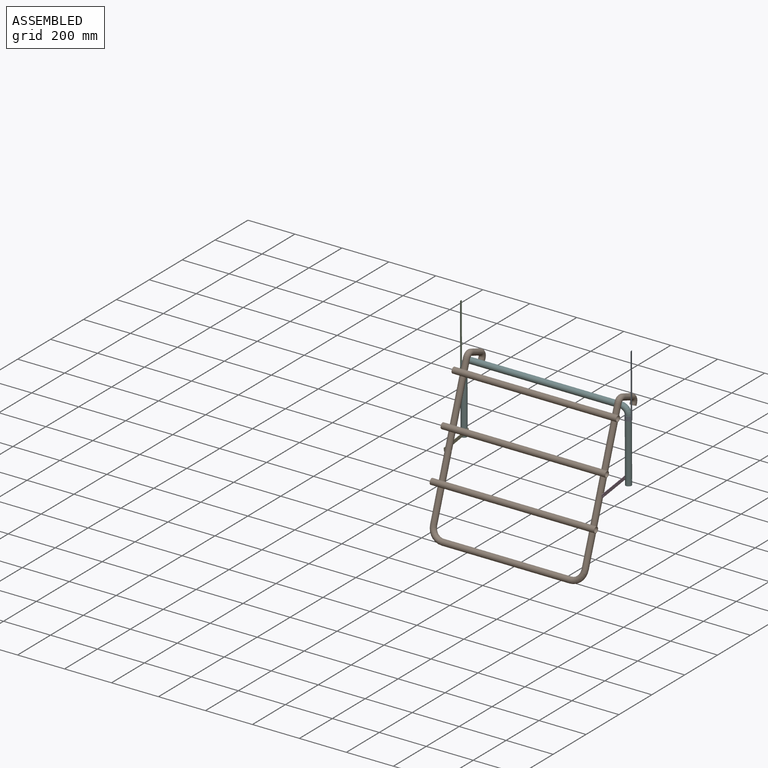
[diagram: assembled view]
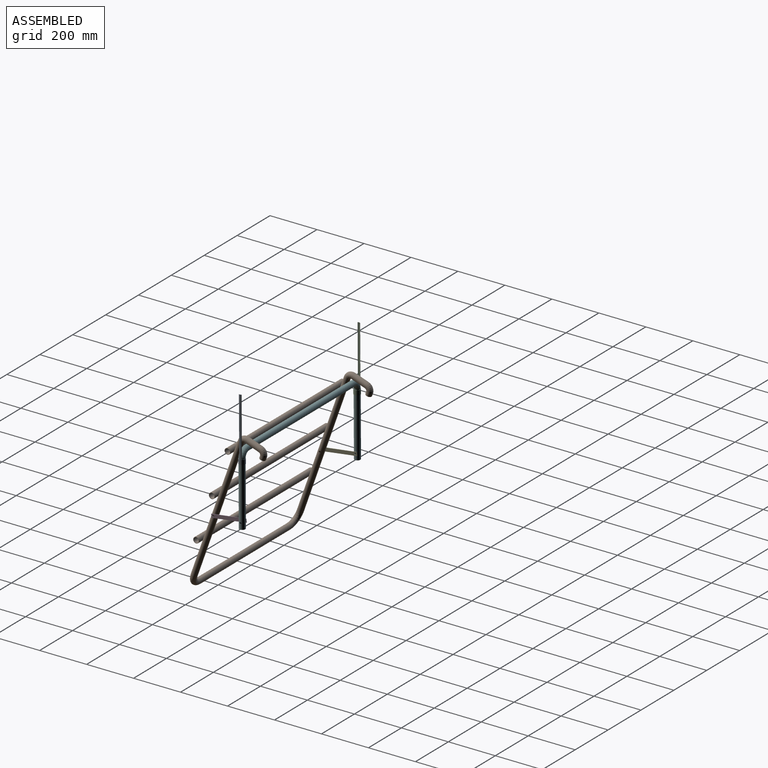
[diagram: assembled view, second angle]
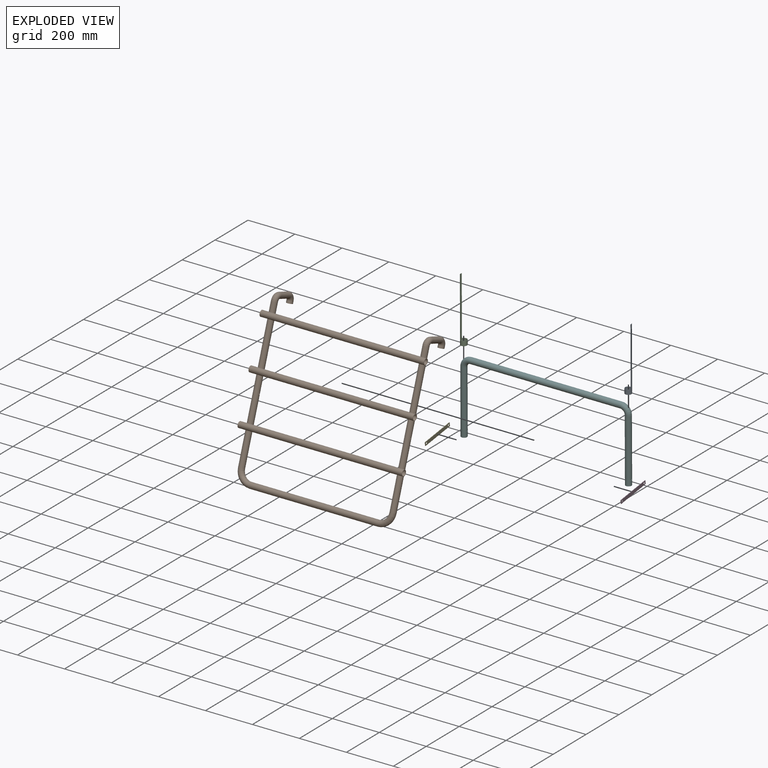
[diagram: exploded view]
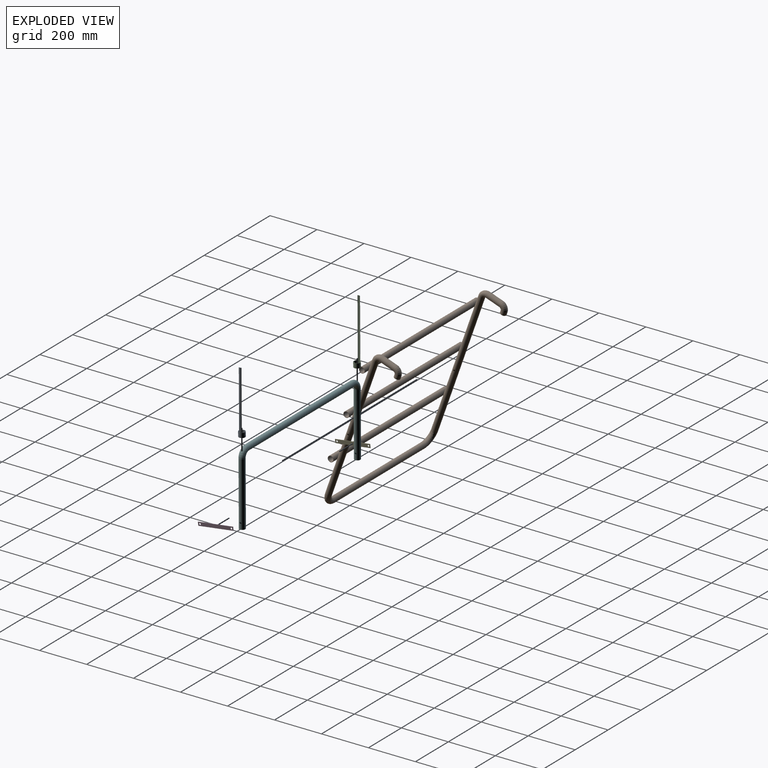
[diagram: exploded view, second angle]
ASSEMBLY  parts=6 mates=9
PART A: 7 faces, bbox 27x27x270 mm
  f0: cylinder r=12.5mm len=270mm, axis (0,0,-1), area 4070.8mm2, adj f2,f3,f4,f5,f6
  f1: cylinder r=13.5mm len=270mm, axis (0,0,-1), area 4345.7mm2, adj f2,f3,f4,f5,f6
  f2: plane 27x26.74mm, normal (0,0,1), area 71.4mm2, adj f0,f1,f4,f5
  f3: plane 27x27mm, normal (0,0,-1), area 81.7mm2, adj f0,f1
  f4: plane 250x0.83mm, normal (-0.56,0.83,0), area 250mm2, adj f0,f1,f2,f6
  f5: plane 250x1.02mm, normal (0,-1,0), area 255.4mm2, adj f0,f1,f2,f6
  f6: plane 10.13x3.09mm, normal (0,0,1), area 10.3mm2, adj f0,f1,f4,f5
PART B: 44 faces, bbox 700x702.8x152.2 mm
  f0: cylinder r=12.5mm len=600mm, axis (0,-1,0), area 46917.3mm2, adj f7,f12,f13,f15,f19,f23,f31
  f1: cylinder r=12.5mm len=600mm, axis (0,1,0), area 46917.4mm2, adj f9,f10,f11,f15,f19,f23,f40
  f2: cylinder r=11mm len=600mm, axis (0,-1,0), area 41379.4mm2, adj f3,f12,f13,f26
  f3: torus R=50mm, axis (0,0,-1), area 5428.3mm2, adj f2,f4
  f4: cylinder r=11mm len=545mm, axis (-1,0,0), area 37667.7mm2, adj f3,f5
  f5: torus R=50mm, axis (0,0,-1), area 5428.3mm2, adj f4,f6
  f6: cylinder r=11mm len=600mm, axis (0,1,0), area 41379.5mm2, adj f5,f10,f11,f35
  f7: torus R=50mm, axis (0,0,-1), area 6168.5mm2, adj f0,f8
  f8: cylinder r=12.5mm len=545mm, axis (-1,0,0), area 42804.2mm2, adj f7,f9
  f9: torus R=50mm, axis (0,0,-1), area 6168.5mm2, adj f1,f8
  f10: cylinder r=3.75mm len=7.5mm, axis (1,0,0), area 36.3mm2, adj f1,f6
  f11: cylinder r=3.75mm len=7.5mm, axis (1,0,0), area 36.3mm2, adj f1,f6
  f12: cylinder r=3.75mm len=7.5mm, axis (1,0,0), area 36.3mm2, adj f0,f2
  f13: cylinder r=3.75mm len=7.5mm, axis (1,0,0), area 36.3mm2, adj f0,f2
  f14: cylinder r=11mm len=700mm, axis (-1,0,0), area 48380.5mm2, adj f16,f17
  f15: cylinder r=12.5mm len=700mm, axis (-1,0,0), area 54899.7mm2, adj f0,f1,f16,f17
  f16: plane 25x25mm, normal (1,0,0), area 110.7mm2, adj f14,f15
  f17: plane 25x25mm, normal (-1,0,0), area 110.7mm2, adj f14,f15
  f18: cylinder r=11mm len=700mm, axis (-1,0,0), area 48380.5mm2, adj f20,f21
  f19: cylinder r=12.5mm len=700mm, axis (-1,0,0), area 54899.7mm2, adj f0,f1,f20,f21
  f20: plane 25x25mm, normal (1,0,0), area 110.7mm2, adj f18,f19
  f21: plane 25x25mm, normal (-1,0,0), area 110.7mm2, adj f18,f19
  f22: cylinder r=11mm len=700mm, axis (-1,0,0), area 48380.5mm2, adj f24,f25
  f23: cylinder r=12.5mm len=700mm, axis (-1,0,0), area 54899.7mm2, adj f0,f1,f24,f25
  f24: plane 25x25mm, normal (1,0,0), area 110.7mm2, adj f22,f23
  f25: plane 25x25mm, normal (-1,0,0), area 110.7mm2, adj f22,f23
  f26: torus R=20mm, axis (-1,0,0), area 2171.3mm2, adj f2,f27
  f27: cylinder r=11mm len=60mm, axis (0,0,-1), area 4146.9mm2, adj f26,f28
  f28: torus R=20mm, axis (-1,0,0), area 2171.3mm2, adj f27,f29
  f29: cylinder r=11mm len=22mm, axis (0,-1,0), area 691.2mm2, adj f28,f30
  f30: plane 25x25mm, normal (0,-1,0), area 110.7mm2, adj f29,f34
  f31: torus R=20mm, axis (-1,0,0), area 2467.4mm2, adj f0,f32
  f32: cylinder r=12.5mm len=60mm, axis (0,0,-1), area 4712.4mm2, adj f31,f33
  f33: torus R=20mm, axis (-1,0,0), area 2467.4mm2, adj f32,f34
  f34: cylinder r=12.5mm len=25mm, axis (0,-1,0), area 785.4mm2, adj f30,f33
  f35: torus R=20mm, axis (-1,0,0), area 2171.3mm2, adj f6,f36
  f36: cylinder r=11mm len=60mm, axis (0,0,-1), area 4146.9mm2, adj f35,f37
  f37: torus R=20mm, axis (-1,0,0), area 2171.3mm2, adj f36,f38
  f38: cylinder r=11mm len=22mm, axis (0,-1,0), area 691.2mm2, adj f37,f39
  f39: plane 25x25mm, normal (0,-1,0), area 110.7mm2, adj f38,f43
  f40: torus R=20mm, axis (-1,0,0), area 2467.4mm2, adj f1,f41
  f41: cylinder r=12.5mm len=60mm, axis (0,0,-1), area 4712.4mm2, adj f40,f42
  f42: torus R=20mm, axis (-1,0,0), area 2467.4mm2, adj f41,f43
  f43: cylinder r=12.5mm len=25mm, axis (0,-1,0), area 785.4mm2, adj f39,f42
PART C: same geometry as A
PART D: 8 faces, bbox 150x15x2 mm
  f0: plane 15x2mm, normal (-1,0,0), area 30mm2, adj f1,f3,f4,f5
  f1: plane 150x2mm, normal (0,-1,0), area 300mm2, adj f0,f2,f4,f5
  f2: plane 15x2mm, normal (1,0,0), area 30mm2, adj f1,f3,f4,f5
  f3: plane 150x2mm, normal (0,1,0), area 300mm2, adj f0,f2,f4,f5
  f4: plane 150x15mm, normal (0,0,1), area 2161.6mm2, adj f0,f1,f2,f3,f6,f7
  f5: plane 150x15mm, normal (0,0,-1), area 2161.6mm2, adj f0,f1,f2,f3,f6,f7
  f6: cylinder r=3.75mm len=7.5mm, axis (0,0,1), area 47.1mm2, adj f4,f5
  f7: cylinder r=3.75mm len=7.5mm, axis (0,0,1), area 47.1mm2, adj f4,f5
PART E: same geometry as D
PART F: 16 faces, bbox 732x316x25 mm
  f0: cylinder r=11mm len=270mm, axis (0,-1,0), area 18571.5mm2, adj f1,f5,f14,f15
  f1: torus R=30mm, axis (0,0,-1), area 3257mm2, adj f0,f2
  f2: cylinder r=11mm len=640mm, axis (-1,0,0), area 44233.6mm2, adj f1,f3
  f3: torus R=30mm, axis (0,0,-1), area 3257mm2, adj f2,f4
  f4: cylinder r=11mm len=270mm, axis (0,1,0), area 18571.5mm2, adj f3,f6,f12,f13
  f5: plane 25x25mm, normal (0,1,0), area 110.7mm2, adj f0,f7
  f6: plane 25x25mm, normal (0,1,0), area 110.7mm2, adj f4,f11
  f7: cylinder r=12.5mm len=270mm, axis (0,-1,0), area 21116.4mm2, adj f5,f8,f14,f15
  f8: torus R=30mm, axis (0,0,-1), area 3701.1mm2, adj f7,f9
  f9: cylinder r=12.5mm len=640mm, axis (-1,0,0), area 50265.5mm2, adj f8,f10
  f10: torus R=30mm, axis (0,0,-1), area 3701.1mm2, adj f9,f11
  f11: cylinder r=12.5mm len=270mm, axis (0,1,0), area 21116.5mm2, adj f6,f10,f12,f13
  f12: cylinder r=3.75mm len=7.5mm, axis (1,0,0), area 36.3mm2, adj f4,f11
  f13: cylinder r=3.75mm len=7.5mm, axis (1,0,0), area 36.3mm2, adj f4,f11
  f14: cylinder r=3.75mm len=7.5mm, axis (1,0,0), area 36.3mm2, adj f0,f7
  f15: cylinder r=3.75mm len=7.5mm, axis (1,0,0), area 36.3mm2, adj f0,f7
PLACE A rot(axis=(0.21,0,-0.98),1.3deg) t=(340.15,-0.05,252.87)mm
PLACE B rot(axis=(1,0,0),70.5deg) t=(-10.31,-131.06,14.61)mm
PLACE C rot(axis=(0,0,1),169.2deg) t=(-359.85,-0.05,252.99)mm
PLACE D rot(axis=(0.6,-0.52,-0.6),124.6deg) t=(326.71,9.47,21.82)mm
PLACE E rot(axis=(0.6,-0.52,-0.6),124.6deg) t=(-345.33,9.47,21.82)mm
PLACE F rot(axis=(0,0.71,-0.71),180deg) t=(-9.85,0.43,153.23)mm fixed
MATE cylindrical E.f6 <-> B.f10  axis (1,0,0) through (-345.33,-132.73,9.9)mm
MATE planar F.f12 <-> E.f7  axis (-1,0,0) through (-347.33,1.02,28.23)mm
MATE cylindrical A.f0 <-> F.f11  axis (0,0,-1) through (340.15,-0.05,252.87)mm
MATE cylindrical F.f12 <-> D.f7  axis (-1,0,0) through (328.73,1.02,28.23)mm
MATE planar D.f6 <-> B.f10  axis (-1,0,0) through (324.71,-132.73,9.9)mm
MATE cylindrical D.f6 <-> B.f10  axis (1,0,0) through (326.71,-132.73,9.9)mm
MATE cylindrical C.f0 <-> F.f7  axis (0,0,-1) through (-359.85,-0.05,252.99)mm
MATE cylindrical E.f7 <-> F.f12  axis (-1,0,0) through (-347.33,1.02,28.23)mm
MATE planar B.f10 <-> E.f6  axis (1,0,0) through (-345.33,-132.73,9.9)mm
